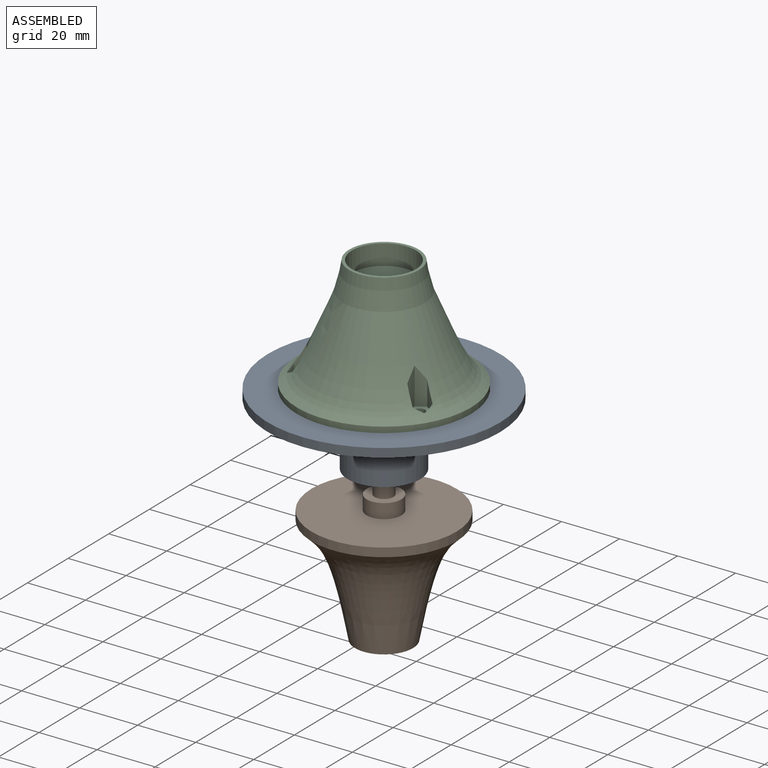
[diagram: assembled view]
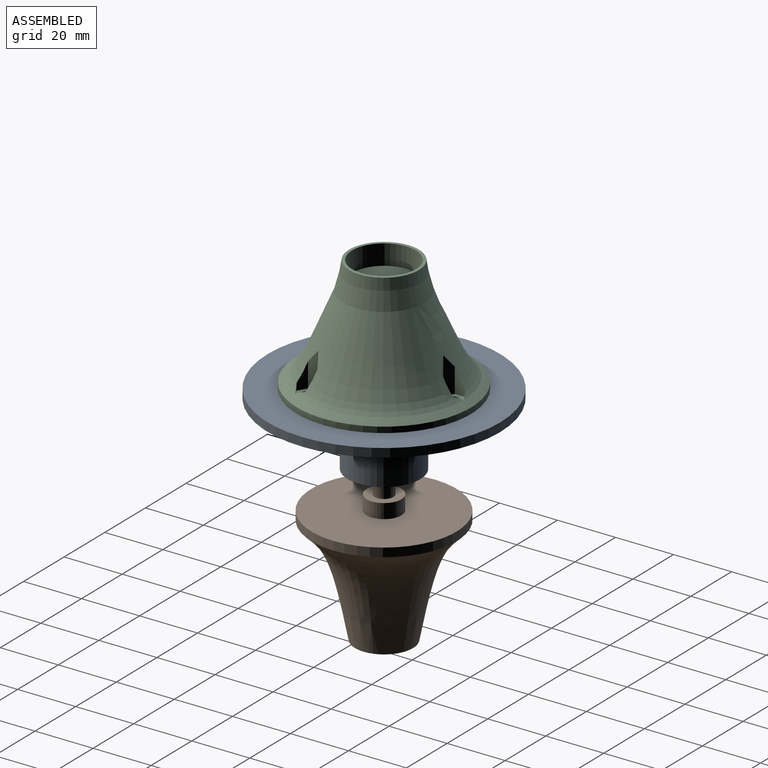
[diagram: assembled view, second angle]
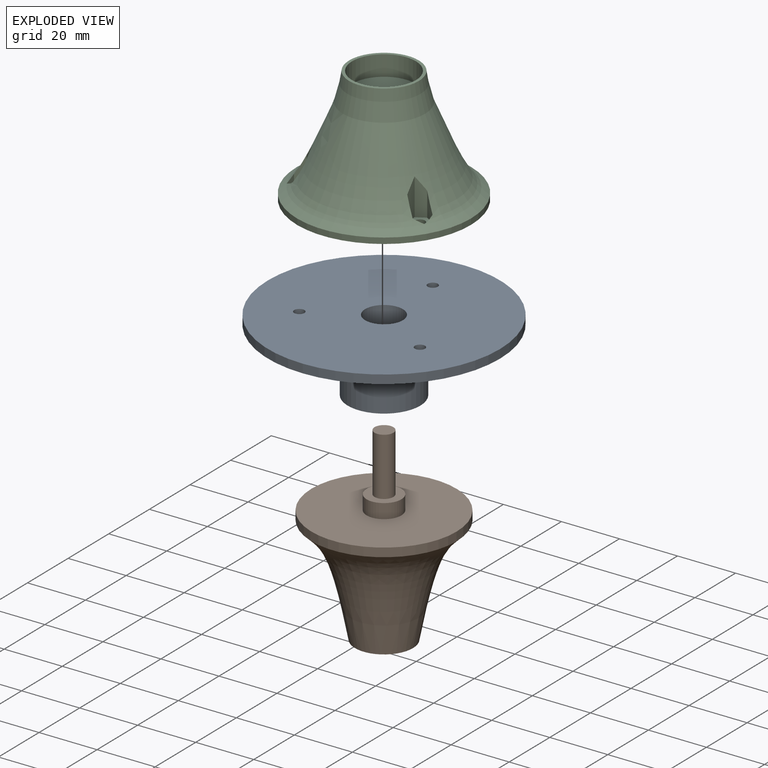
[diagram: exploded view]
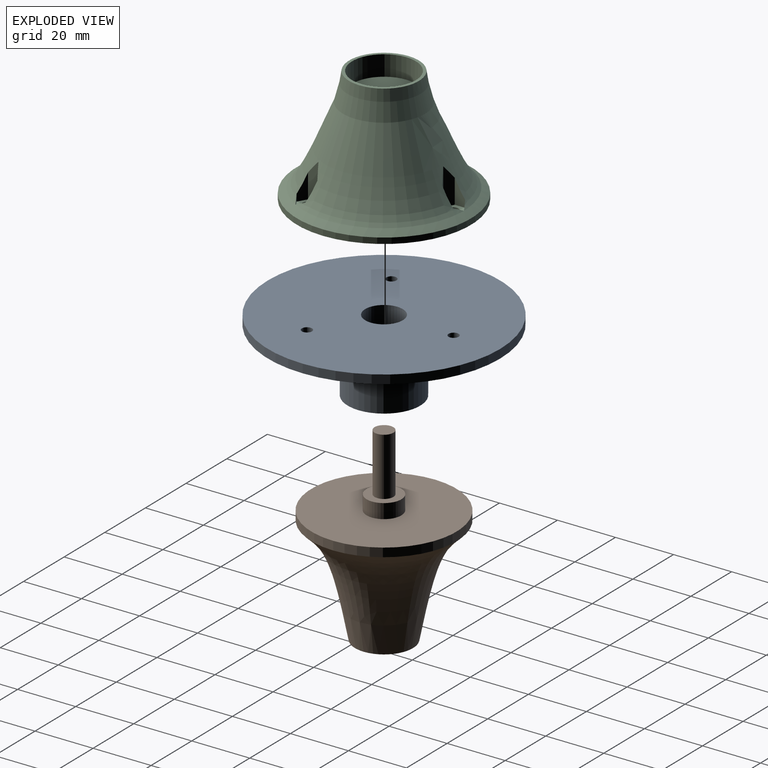
[diagram: exploded view, second angle]
ASSEMBLY  parts=3 mates=2
PART A: 12 faces, bbox 80x80x25 mm
  f0: plane 19x19mm, normal (0,0,-1), area 150.8mm2, adj f2,f5
  f1: cylinder r=12.5mm len=25mm, axis (0,0,-1), area 1727.9mm2, adj f4,f8
  f2: cylinder r=6.5mm len=13mm, axis (0,0,-1), area 530.9mm2, adj f0,f7
  f3: cylinder r=11.5mm len=23mm, axis (0,0,1), area 722.6mm2, adj f4,f5
  f4: plane 25x25mm, normal (0,0,-1), area 75.4mm2, adj f1,f3
  f5: cone r=11.5mm half-angle=45deg, axis (0,0,-1), area 186.6mm2, adj f0,f3
  f6: cylinder r=40mm len=80mm, axis (0,0,-1), area 754mm2, adj f7,f8
  f7: plane 80x80mm, normal (0,0,1), area 4865mm2, adj f2,f6,f9,f10,f11
  f8: plane 80x80mm, normal (0,0,-1), area 4506.8mm2, adj f1,f6,f9,f10,f11
  f9: cylinder r=1.75mm len=3.5mm, axis (0,0,1), area 33mm2, adj f7,f8
  f10: cylinder r=1.75mm len=3.5mm, axis (0,0,1), area 33mm2, adj f7,f8
  f11: cylinder r=1.75mm len=3.5mm, axis (0,0,1), area 33mm2, adj f7,f8
PART B: 8 faces, bbox 50x50x65.3 mm
  f0: cylinder r=3.25mm len=20mm, axis (0,0,-1), area 408.4mm2, adj f1,f3
  f1: plane 6.5x6.5mm, normal (0,0,1), area 33.2mm2, adj f0
  f2: cylinder r=6mm len=12mm, axis (0,0,-1), area 188.5mm2, adj f3,f4
  f3: plane 12x12mm, normal (0,0,1), area 79.9mm2, adj f0,f2
  f4: plane 50x50mm, normal (0,0,1), area 1850.4mm2, adj f2,f7
  f5: plane 20x20mm, normal (0,0,-1), area 314.2mm2, adj f6
  f6: revolved ~50x50mm, area 3987.1mm2, adj f5,f7
  f7: cylinder r=25mm len=50mm, axis (0,0,1), area 471.2mm2, adj f4,f6
PART C: 31 faces, bbox 60.2x60.2x40.2 mm
  f0: revolved ~60x60mm, area 4952.5mm2, adj f5,f6,f7,f8,f9,f10,f11,f12
  f1: cylinder r=1.75mm len=3.5mm, axis (0,0,-1), area 33mm2, adj f4,f27
  f2: cylinder r=1.75mm len=3.5mm, axis (0,0,-1), area 33mm2, adj f4,f20
  f3: cylinder r=1.75mm len=3.5mm, axis (0,0,-1), area 33mm2, adj f4,f13
  f4: plane 60x60mm, normal (0,0,-1), area 2760.1mm2, adj f1,f2,f3,f6,f30
  f5: plane 24x24mm, normal (0,0,1), area 72.3mm2, adj f0,f28
  f6: cylinder r=30mm len=60mm, axis (0,0,-1), area 377mm2, adj f0,f4
  f7: plane 3.77x2.58mm, normal (1,0,0), area 5.5mm2, adj f0,f8,f12,f13
  f8: plane 3.29x2.58mm, normal (0.5,0.87,0), area 5.5mm2, adj f0,f7,f9,f13
  f9: plane 8.42x3.1mm, normal (-0.5,0.87,0), area 18.5mm2, adj f0,f8,f10,f13
  f10: plane 12.68x3.58mm, normal (-1,0,0), area 37.9mm2, adj f0,f9,f11,f13
  f11: plane 12.68x3.1mm, normal (-0.5,-0.87,0), area 37.9mm2, adj f0,f10,f12,f13
  f12: plane 8.42x3.1mm, normal (0.5,-0.87,0), area 18.5mm2, adj f0,f7,f11,f13
  f13: plane 7.16x6.2mm, normal (0,0,1), area 23.7mm2, adj f3,f7,f8,f9,f10,f11,f12
  f14: plane 12.68x3.1mm, normal (-0.5,0.87,0), area 37.9mm2, adj f0,f15,f19,f20
  f15: plane 8.42x3.58mm, normal (-1,0,0), area 18.5mm2, adj f0,f14,f16,f20
  f16: plane 3.29x2.58mm, normal (-0.5,-0.87,0), area 5.5mm2, adj f0,f15,f17,f20
  f17: plane 3.29x2.58mm, normal (0.5,-0.87,0), area 5.5mm2, adj f0,f16,f18,f20
  f18: plane 8.42x3.58mm, normal (1,0,0), area 18.5mm2, adj f0,f17,f19,f20
  f19: plane 12.68x3.1mm, normal (0.5,0.87,0), area 37.9mm2, adj f0,f14,f18,f20
  f20: plane 7.16x6.2mm, normal (0,0,1), area 23.7mm2, adj f2,f14,f15,f16,f17,f18,f19
  f21: plane 3.29x2.58mm, normal (-0.5,0.87,0), area 5.5mm2, adj f0,f22,f26,f27
  f22: plane 3.77x2.58mm, normal (-1,0,0), area 5.5mm2, adj f0,f21,f23,f27
  f23: plane 8.42x3.1mm, normal (-0.5,-0.87,0), area 18.5mm2, adj f0,f22,f24,f27
  f24: plane 12.68x3.1mm, normal (0.5,-0.87,0), area 37.9mm2, adj f0,f23,f25,f27
  f25: plane 12.68x3.58mm, normal (1,0,0), area 37.9mm2, adj f0,f24,f26,f27
  f26: plane 8.42x3.1mm, normal (0.5,0.87,0), area 18.5mm2, adj f0,f21,f25,f27
  f27: plane 7.16x6.2mm, normal (0,0,1), area 23.7mm2, adj f1,f21,f22,f23,f24,f25,f26
  f28: cylinder r=11mm len=22mm, axis (0,0,1), area 483.8mm2, adj f5,f29
  f29: plane 22x22mm, normal (0,0,1), area 341.6mm2, adj f28,f30
  f30: cylinder r=3.5mm len=33mm, axis (0,0,-1), area 725.7mm2, adj f4,f29
PLACE A t=(-10.67,-9.21,22.93)mm
PLACE B t=(-10.67,-9.21,-2.07)mm
PLACE C t=(-10.67,-9.21,35.93)mm
MATE fastened C.f3 <-> A.f9  axis (0,0,-1) through (-31.46,-21.21,35.93)mm
MATE revolute A.f2 <-> B.f0  axis (0,0,-1) through (-10.67,-9.21,22.93)mm
